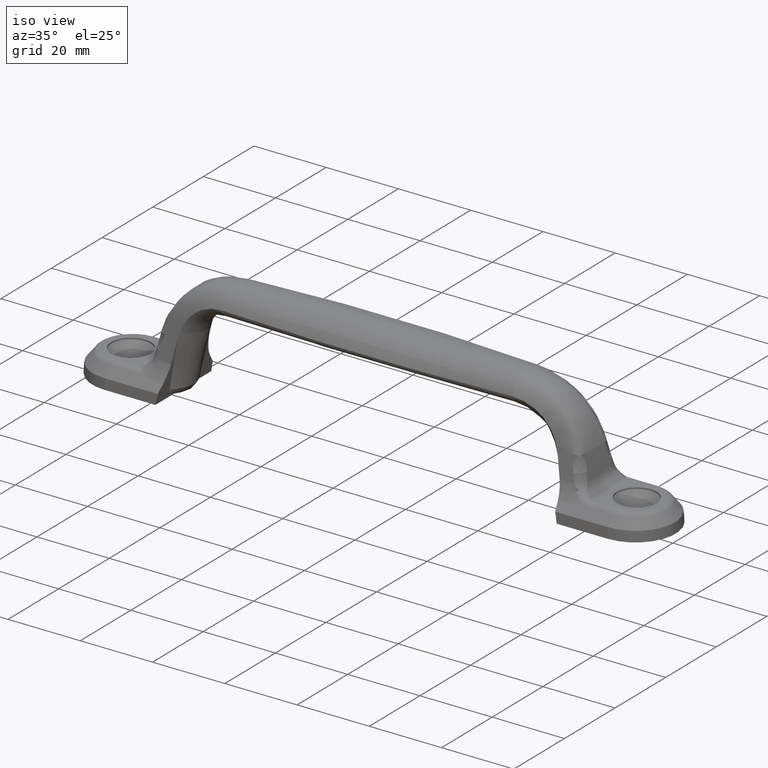
[diagram: clean part render]
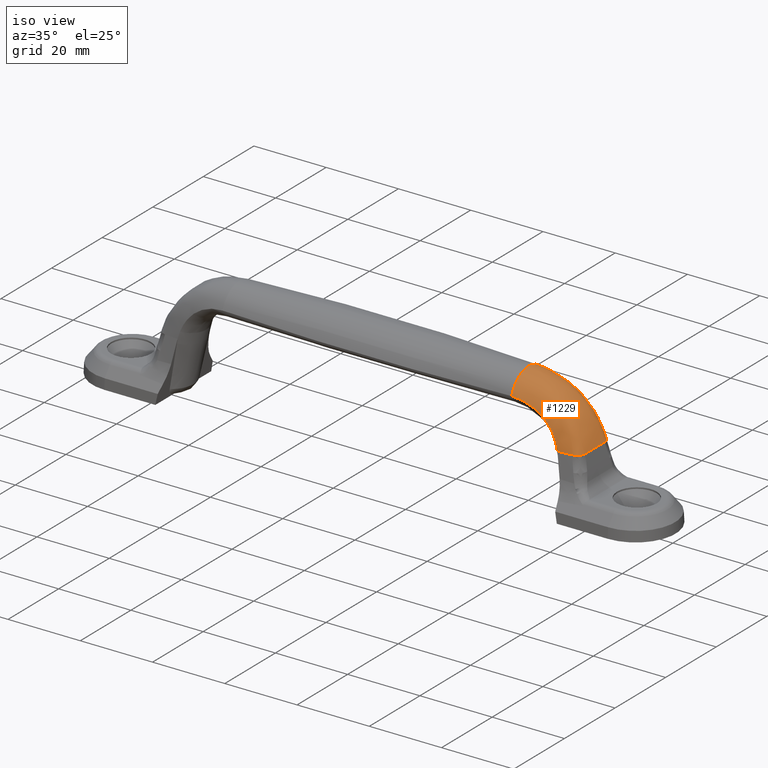
[diagram: same view with one face highlighted and labeled with its STEP entity id]
A machine part, iso view. The second image highlights one B-rep face of the part: STEP entity #1229.
In plain terms, the highlighted face is a freeform B-spline surface patch.
Its self-contained STEP definition (entity closure, byte-faithful):
#214=FACE_OUTER_BOUND('',#292,.T.);
#292=EDGE_LOOP('',(#974,#975,#976,#977,#978,#979,#980,#981,#982,#983));
#351=B_SPLINE_CURVE_WITH_KNOTS('',3,(#2595,#2596,#2597,#2598,#2599,#2600,
#2601,#2602,#2603,#2604,#2605,#2606,#2607,#2608,#2609,#2610,#2611,#2612,
#2613,#2614,#2615,#2616,#2617,#2618,#2619,#2620,#2621,#2622,#2623,#2624,
#2625,#2626,#2627,#2628,#2629,#2630,#2631,#2632,#2633,#2634,#2635,#2636,
#2637,#2638,#2639,#2640,#2641,#2642,#2643,#2644,#2645,#2646,#2647,#2648,
#2649,#2650,#2651,#2652,#2653,#2654,#2655,#2656,#2657,#2658,#2659,#2660,
#2661,#2662,#2663,#2664,#2665,#2666,#2667,#2668,#2669,#2670,#2671,#2672,
#2673,#2674,#2675,#2676,#2677,#2678,#2679,#2680,#2681,#2682,#2683,#2684,
#2685),.UNSPECIFIED.,.F.,.F.,(4,3,3,3,3,3,3,3,3,3,3,3,3,3,3,3,3,3,3,3,3,
3,3,3,3,3,3,3,3,3,4),(-1.45244274154689,-1.27233968254572,-1.26188003441184,
-1.24863686578575,-1.18135394634332,-1.16579611570929,-1.15720602615803,
-1.09036821014091,-1.07221479506251,-1.06942040785981,-0.99254048561245,
-0.972499810366414,-0.91441658445537,-0.875554938940432,-0.756628009416818,
-0.726425265331289,-0.695264892774965,-0.576607233459581,-0.5372171583115,
-0.479769798405919,-0.458965352495309,-0.38294672648406,-0.379217261253053,
-0.362482320521668,-0.294311222000496,-0.286674913206958,-0.271496584319263,
-0.203202702541767,-0.190717509408556,-0.180510848116858,-0.000407574921135646),
 .UNSPECIFIED.);
#354=B_SPLINE_CURVE_WITH_KNOTS('',3,(#2784,#2785,#2786,#2787,#2788,#2789,
#2790),.UNSPECIFIED.,.F.,.F.,(4,3,4),(0.000155878891895283,0.816106507072916,
0.998410947651196),.UNSPECIFIED.);
#356=B_SPLINE_CURVE_WITH_KNOTS('',3,(#2842,#2843,#2844,#2845),
 .UNSPECIFIED.,.F.,.F.,(4,4),(0.0058206311326726,0.999233072081843),
 .UNSPECIFIED.);
#364=B_SPLINE_CURVE_WITH_KNOTS('',3,(#3199,#3200,#3201,#3202,#3203,#3204,
#3205,#3206,#3207,#3208,#3209,#3210,#3211,#3212,#3213,#3214,#3215,#3216),
 .UNSPECIFIED.,.F.,.F.,(4,2,2,2,2,2,2,2,4),(-3.51121698764888,-2.53379644910282,
-1.55025259839207,-1.42293970987048,-0.8631395817506,-0.571547013435443,
-0.498876996679611,-0.292497005789448,-0.0231982827862569),
 .UNSPECIFIED.);
#365=B_SPLINE_CURVE_WITH_KNOTS('',3,(#3217,#3218,#3219,#3220,#3221,#3222,
#3223,#3224,#3225,#3226,#3227,#3228,#3229,#3230,#3231,#3232),
 .UNSPECIFIED.,.F.,.F.,(4,2,2,2,2,2,2,4),(-1.56173898321081,-1.54168394876702,
-1.04008026114952,-0.798445306632561,-0.699808089068794,-0.677956486823365,
-0.338983223211976,-0.00275634945347878),.UNSPECIFIED.);
#376=B_SPLINE_CURVE_WITH_KNOTS('',3,(#3414,#3415,#3416,#3417,#3418,#3419,
#3420),.UNSPECIFIED.,.F.,.F.,(4,3,4),(4.27001461146954E-5,0.268204571787669,
0.991958816736589),.UNSPECIFIED.);
#378=B_SPLINE_CURVE_WITH_KNOTS('',3,(#3455,#3456,#3457,#3458,#3459,#3460,
#3461),.UNSPECIFIED.,.F.,.F.,(4,3,4),(0.00630122673471058,0.731811963247548,
0.999986680318353),.UNSPECIFIED.);
#384=B_SPLINE_CURVE_WITH_KNOTS('',3,(#3501,#3502,#3503,#3504,#3505,#3506,
#3507,#3508,#3509,#3510,#3511,#3512,#3513),.UNSPECIFIED.,.F.,.F.,(4,3,3,
3,4),(0.,0.103987121907698,0.493367860753381,0.882748599599065,1.),
 .UNSPECIFIED.);
#387=B_SPLINE_CURVE_WITH_KNOTS('',3,(#3544,#3545,#3546,#3547,#3548,#3549,
#3550,#3551,#3552,#3553,#3554,#3555,#3556),.UNSPECIFIED.,.F.,.F.,(4,3,3,
3,4),(5.74718952715647E-6,0.129473078932469,0.49999044705951,0.870507815186551,
0.999991339300556),.UNSPECIFIED.);
#390=B_SPLINE_CURVE_WITH_KNOTS('',3,(#3617,#3618,#3619,#3620,#3621,#3622,
#3623,#3624,#3625,#3626,#3627,#3628,#3629,#3630,#3631,#3632),
 .UNSPECIFIED.,.F.,.F.,(4,3,3,3,3,4),(2.57490628136049E-6,0.117221037114539,
0.501697785839383,0.506625757666782,0.896030478219026,1.),.UNSPECIFIED.);
#462=VERTEX_POINT('',#1500);
#473=VERTEX_POINT('',#2238);
#478=VERTEX_POINT('',#2776);
#479=VERTEX_POINT('',#2783);
#480=VERTEX_POINT('',#2791);
#481=VERTEX_POINT('',#2841);
#501=VERTEX_POINT('',#3404);
#504=VERTEX_POINT('',#3449);
#509=VERTEX_POINT('',#3496);
#512=VERTEX_POINT('',#3539);
#607=EDGE_CURVE('',#462,#473,#351,.T.);
#612=EDGE_CURVE('',#479,#478,#354,.T.);
#614=EDGE_CURVE('',#481,#480,#356,.T.);
#625=EDGE_CURVE('',#480,#462,#364,.T.);
#626=EDGE_CURVE('',#473,#479,#365,.T.);
#645=EDGE_CURVE('',#501,#481,#376,.T.);
#649=EDGE_CURVE('',#478,#504,#378,.T.);
#655=EDGE_CURVE('',#504,#509,#384,.T.);
#658=EDGE_CURVE('',#509,#512,#387,.T.);
#662=EDGE_CURVE('',#512,#501,#390,.T.);
#974=ORIENTED_EDGE('',*,*,#607,.T.);
#975=ORIENTED_EDGE('',*,*,#626,.T.);
#976=ORIENTED_EDGE('',*,*,#612,.T.);
#977=ORIENTED_EDGE('',*,*,#649,.T.);
#978=ORIENTED_EDGE('',*,*,#655,.T.);
#979=ORIENTED_EDGE('',*,*,#658,.T.);
#980=ORIENTED_EDGE('',*,*,#662,.T.);
#981=ORIENTED_EDGE('',*,*,#645,.T.);
#982=ORIENTED_EDGE('',*,*,#614,.T.);
#983=ORIENTED_EDGE('',*,*,#625,.T.);
#1179=B_SPLINE_SURFACE_WITH_KNOTS('',3,3,((#4013,#4014,#4015,#4016,#4017,
#4018,#4019,#4020,#4021,#4022,#4023,#4024,#4025,#4026,#4027,#4028,#4029,
#4030,#4031,#4032,#4033,#4034,#4035,#4036,#4037,#4038,#4039,#4040,#4041,
#4042,#4043,#4044,#4045,#4046,#4047,#4048,#4049),(#4050,#4051,#4052,#4053,
#4054,#4055,#4056,#4057,#4058,#4059,#4060,#4061,#4062,#4063,#4064,#4065,
#4066,#4067,#4068,#4069,#4070,#4071,#4072,#4073,#4074,#4075,#4076,#4077,
#4078,#4079,#4080,#4081,#4082,#4083,#4084,#4085,#4086),(#4087,#4088,#4089,
#4090,#4091,#4092,#4093,#4094,#4095,#4096,#4097,#4098,#4099,#4100,#4101,
#4102,#4103,#4104,#4105,#4106,#4107,#4108,#4109,#4110,#4111,#4112,#4113,
#4114,#4115,#4116,#4117,#4118,#4119,#4120,#4121,#4122,#4123),(#4124,#4125,
#4126,#4127,#4128,#4129,#4130,#4131,#4132,#4133,#4134,#4135,#4136,#4137,
#4138,#4139,#4140,#4141,#4142,#4143,#4144,#4145,#4146,#4147,#4148,#4149,
#4150,#4151,#4152,#4153,#4154,#4155,#4156,#4157,#4158,#4159,#4160),(#4161,
#4162,#4163,#4164,#4165,#4166,#4167,#4168,#4169,#4170,#4171,#4172,#4173,
#4174,#4175,#4176,#4177,#4178,#4179,#4180,#4181,#4182,#4183,#4184,#4185,
#4186,#4187,#4188,#4189,#4190,#4191,#4192,#4193,#4194,#4195,#4196,#4197),
(#4198,#4199,#4200,#4201,#4202,#4203,#4204,#4205,#4206,#4207,#4208,#4209,
#4210,#4211,#4212,#4213,#4214,#4215,#4216,#4217,#4218,#4219,#4220,#4221,
#4222,#4223,#4224,#4225,#4226,#4227,#4228,#4229,#4230,#4231,#4232,#4233,
#4234),(#4235,#4236,#4237,#4238,#4239,#4240,#4241,#4242,#4243,#4244,#4245,
#4246,#4247,#4248,#4249,#4250,#4251,#4252,#4253,#4254,#4255,#4256,#4257,
#4258,#4259,#4260,#4261,#4262,#4263,#4264,#4265,#4266,#4267,#4268,#4269,
#4270,#4271),(#4272,#4273,#4274,#4275,#4276,#4277,#4278,#4279,#4280,#4281,
#4282,#4283,#4284,#4285,#4286,#4287,#4288,#4289,#4290,#4291,#4292,#4293,
#4294,#4295,#4296,#4297,#4298,#4299,#4300,#4301,#4302,#4303,#4304,#4305,
#4306,#4307,#4308),(#4309,#4310,#4311,#4312,#4313,#4314,#4315,#4316,#4317,
#4318,#4319,#4320,#4321,#4322,#4323,#4324,#4325,#4326,#4327,#4328,#4329,
#4330,#4331,#4332,#4333,#4334,#4335,#4336,#4337,#4338,#4339,#4340,#4341,
#4342,#4343,#4344,#4345),(#4346,#4347,#4348,#4349,#4350,#4351,#4352,#4353,
#4354,#4355,#4356,#4357,#4358,#4359,#4360,#4361,#4362,#4363,#4364,#4365,
#4366,#4367,#4368,#4369,#4370,#4371,#4372,#4373,#4374,#4375,#4376,#4377,
#4378,#4379,#4380,#4381,#4382),(#4383,#4384,#4385,#4386,#4387,#4388,#4389,
#4390,#4391,#4392,#4393,#4394,#4395,#4396,#4397,#4398,#4399,#4400,#4401,
#4402,#4403,#4404,#4405,#4406,#4407,#4408,#4409,#4410,#4411,#4412,#4413,
#4414,#4415,#4416,#4417,#4418,#4419),(#4420,#4421,#4422,#4423,#4424,#4425,
#4426,#4427,#4428,#4429,#4430,#4431,#4432,#4433,#4434,#4435,#4436,#4437,
#4438,#4439,#4440,#4441,#4442,#4443,#4444,#4445,#4446,#4447,#4448,#4449,
#4450,#4451,#4452,#4453,#4454,#4455,#4456),(#4457,#4458,#4459,#4460,#4461,
#4462,#4463,#4464,#4465,#4466,#4467,#4468,#4469,#4470,#4471,#4472,#4473,
#4474,#4475,#4476,#4477,#4478,#4479,#4480,#4481,#4482,#4483,#4484,#4485,
#4486,#4487,#4488,#4489,#4490,#4491,#4492,#4493)),.UNSPECIFIED.,.F.,.F.,
 .F.,(4,3,3,3,4),(4,3,3,3,3,3,3,3,3,3,3,3,4),(-3.09396192079746E-7,0.25,
0.5,0.75,1.00009921600731),(0.,0.125,0.1875,0.25,0.3125,0.375,0.5,0.625,
0.6875,0.75,0.8125,0.875,1.),.UNSPECIFIED.);
#1229=ADVANCED_FACE('',(#214),#1179,.T.);
#1500=CARTESIAN_POINT('',(40.000000012315,66.7435429464267,26.0890724852704));
#2238=CARTESIAN_POINT('',(40.0000000001041,53.3919639267432,26.0888706103815));
#2595=CARTESIAN_POINT('Ctrl Pts',(40.,66.7435429479448,26.0890724857202));
#2596=CARTESIAN_POINT('Ctrl Pts',(40.,66.5456162994502,26.7571195508299));
#2597=CARTESIAN_POINT('Ctrl Pts',(40.0000000000055,66.2466259363051,27.3952777706087));
#2598=CARTESIAN_POINT('Ctrl Pts',(40.0000000000064,65.8602251725342,27.974926886927));
#2599=CARTESIAN_POINT('Ctrl Pts',(40.0000000000065,65.8377845985089,28.0085905339046));
#2600=CARTESIAN_POINT('Ctrl Pts',(40.0000000000065,65.8150487414152,28.0420572762008));
#2601=CARTESIAN_POINT('Ctrl Pts',(40.0000000000065,65.7920213779996,28.0753200027706));
#2602=CARTESIAN_POINT('Ctrl Pts',(40.0000000000065,65.7628659749857,28.117434602735));
#2603=CARTESIAN_POINT('Ctrl Pts',(40.0000000000065,65.733243942831,28.1592232941396));
#2604=CARTESIAN_POINT('Ctrl Pts',(40.0000000000066,65.7031637506445,28.2006767307134));
#2605=CARTESIAN_POINT('Ctrl Pts',(40.0000000000069,65.5503390600557,28.4112840492754));
#2606=CARTESIAN_POINT('Ctrl Pts',(40.0000000000083,65.3856747424858,28.6132267834702));
#2607=CARTESIAN_POINT('Ctrl Pts',(40.0000000000087,65.2103160519707,28.8053440326915));
#2608=CARTESIAN_POINT('Ctrl Pts',(40.0000000000088,65.1697678589101,28.8497673075736));
#2609=CARTESIAN_POINT('Ctrl Pts',(40.0000000000088,65.1286485439547,28.8936657242846));
#2610=CARTESIAN_POINT('Ctrl Pts',(40.0000000000089,65.0869728875365,28.9370252935861));
#2611=CARTESIAN_POINT('Ctrl Pts',(40.0000000000089,65.0639621202155,28.9609658153701));
#2612=CARTESIAN_POINT('Ctrl Pts',(40.0000000000089,65.0407813561301,28.9847418543393));
#2613=CARTESIAN_POINT('Ctrl Pts',(40.000000000009,65.0174332301336,29.0083505927952));
#2614=CARTESIAN_POINT('Ctrl Pts',(40.0000000000096,64.8357660029892,29.1920455947966));
#2615=CARTESIAN_POINT('Ctrl Pts',(40.0000000000129,64.643959435347,29.3656205501717));
#2616=CARTESIAN_POINT('Ctrl Pts',(40.0000000000137,64.4431287787644,29.5279386448336));
#2617=CARTESIAN_POINT('Ctrl Pts',(40.0000000000139,64.388582378438,29.5720248810801));
#2618=CARTESIAN_POINT('Ctrl Pts',(40.0000000000141,64.3333623737363,29.6152863515117));
#2619=CARTESIAN_POINT('Ctrl Pts',(40.0000000000141,64.2775290425014,29.657672136474));
#2620=CARTESIAN_POINT('Ctrl Pts',(40.0000000000142,64.2689345193435,29.6641966551149));
#2621=CARTESIAN_POINT('Ctrl Pts',(40.0000000000142,64.2603253758254,29.6707006135387));
#2622=CARTESIAN_POINT('Ctrl Pts',(40.0000000000141,64.2517016763803,29.677183629416));
#2623=CARTESIAN_POINT('Ctrl Pts',(40.0000000000136,64.0144441688385,29.8555460825848));
#2624=CARTESIAN_POINT('Ctrl Pts',(40.0000000000113,63.7661804046834,30.0182280151452));
#2625=CARTESIAN_POINT('Ctrl Pts',(40.0000000000108,63.5086588093922,30.1645552723626));
#2626=CARTESIAN_POINT('Ctrl Pts',(40.0000000000107,63.4415293624676,30.2026991330197));
#2627=CARTESIAN_POINT('Ctrl Pts',(40.0000000000106,63.373768395033,30.2397296670883));
#2628=CARTESIAN_POINT('Ctrl Pts',(40.0000000000105,63.305406734539,30.2756290480425));
#2629=CARTESIAN_POINT('Ctrl Pts',(40.0000000000103,63.1072763960459,30.379675035936));
#2630=CARTESIAN_POINT('Ctrl Pts',(40.0000000000095,62.9040887728557,30.4742382155063));
#2631=CARTESIAN_POINT('Ctrl Pts',(40.0000000000092,62.6965564401967,30.5589024510127));
#2632=CARTESIAN_POINT('Ctrl Pts',(40.0000000000091,62.5577031341314,30.6155486075655));
#2633=CARTESIAN_POINT('Ctrl Pts',(40.0000000000089,62.4167080039818,30.6678259036278));
#2634=CARTESIAN_POINT('Ctrl Pts',(40.0000000000087,62.2743848960654,30.7153618745583));
#2635=CARTESIAN_POINT('Ctrl Pts',(40.0000000000081,61.8388384851897,30.8608345376371));
#2636=CARTESIAN_POINT('Ctrl Pts',(40.0000000000062,61.3785916573075,30.9682906469442));
#2637=CARTESIAN_POINT('Ctrl Pts',(40.0000000000058,60.8750869615535,31.0271000978467));
#2638=CARTESIAN_POINT('Ctrl Pts',(40.0000000000056,60.7472166504924,31.042035376194));
#2639=CARTESIAN_POINT('Ctrl Pts',(40.0000000000056,60.616556382477,31.0538331424631));
#2640=CARTESIAN_POINT('Ctrl Pts',(40.0000000000056,60.4841462873822,31.0617522825016));
#2641=CARTESIAN_POINT('Ctrl Pts',(40.0000000000055,60.3475379089618,31.0699225121082));
#2642=CARTESIAN_POINT('Ctrl Pts',(40.0000000000055,60.2089628957668,31.0744393749045));
#2643=CARTESIAN_POINT('Ctrl Pts',(40.0000000000055,60.0677024010521,31.0743883025412));
#2644=CARTESIAN_POINT('Ctrl Pts',(40.0000000000054,59.5297871490352,31.0741938206852));
#2645=CARTESIAN_POINT('Ctrl Pts',(40.0000000000052,58.9529307769382,31.0077614927413));
#2646=CARTESIAN_POINT('Ctrl Pts',(40.0000000000052,58.4027135820866,30.8722099526798));
#2647=CARTESIAN_POINT('Ctrl Pts',(40.0000000000052,58.2200612629863,30.8272117167441));
#2648=CARTESIAN_POINT('Ctrl Pts',(40.0000000000052,58.03936986612,30.7749930502631));
#2649=CARTESIAN_POINT('Ctrl Pts',(40.0000000000053,57.8610634763408,30.7154191970866));
#2650=CARTESIAN_POINT('Ctrl Pts',(40.0000000000053,57.6010174797641,30.6285353673014));
#2651=CARTESIAN_POINT('Ctrl Pts',(40.0000000000055,57.3460521437885,30.5261574464983));
#2652=CARTESIAN_POINT('Ctrl Pts',(40.0000000000056,57.0974239637422,30.408862795047));
#2653=CARTESIAN_POINT('Ctrl Pts',(40.0000000000056,57.0073837681244,30.3663847728066));
#2654=CARTESIAN_POINT('Ctrl Pts',(40.0000000000056,56.9182105792286,30.3219662850766));
#2655=CARTESIAN_POINT('Ctrl Pts',(40.0000000000057,56.8298467934963,30.2755591568647));
#2656=CARTESIAN_POINT('Ctrl Pts',(40.0000000000058,56.5069690004811,30.1059893380407));
#2657=CARTESIAN_POINT('Ctrl Pts',(40.0000000000066,56.2026374885721,29.9134361934));
#2658=CARTESIAN_POINT('Ctrl Pts',(40.0000000000068,55.9247728929222,29.7076990120874));
#2659=CARTESIAN_POINT('Ctrl Pts',(40.0000000000068,55.9111408871524,29.697605569142));
#2660=CARTESIAN_POINT('Ctrl Pts',(40.0000000000068,55.8975528779916,29.6874695501255));
#2661=CARTESIAN_POINT('Ctrl Pts',(40.0000000000068,55.8840282949358,29.6773020530628));
#2662=CARTESIAN_POINT('Ctrl Pts',(40.0000000000068,55.8233404799715,29.6316782302917));
#2663=CARTESIAN_POINT('Ctrl Pts',(40.0000000000068,55.7638098606277,29.5853563857783));
#2664=CARTESIAN_POINT('Ctrl Pts',(40.0000000000067,55.7054314067084,29.5384012115817));
#2665=CARTESIAN_POINT('Ctrl Pts',(40.0000000000066,55.4676221788466,29.3471256129636));
#2666=CARTESIAN_POINT('Ctrl Pts',(40.0000000000062,55.248877929845,29.1453487366858));
#2667=CARTESIAN_POINT('Ctrl Pts',(40.0000000000062,55.0487092980481,28.9370997468335));
#2668=CARTESIAN_POINT('Ctrl Pts',(40.0000000000062,55.0262870470305,28.9137723599063));
#2669=CARTESIAN_POINT('Ctrl Pts',(40.0000000000062,55.0040983379772,28.8903638541428));
#2670=CARTESIAN_POINT('Ctrl Pts',(40.0000000000062,54.982141555193,28.8668791703864));
#2671=CARTESIAN_POINT('Ctrl Pts',(40.0000000000062,54.9384990992073,28.8201997780889));
#2672=CARTESIAN_POINT('Ctrl Pts',(40.0000000000062,54.8957732469947,28.7732196425984));
#2673=CARTESIAN_POINT('Ctrl Pts',(40.0000000000061,54.8539620096702,28.7259816853404));
#2674=CARTESIAN_POINT('Ctrl Pts',(40.000000000006,54.6658351269323,28.513437637029));
#2675=CARTESIAN_POINT('Ctrl Pts',(40.0000000000056,54.4964248354426,28.2960580309727));
#2676=CARTESIAN_POINT('Ctrl Pts',(40.0000000000055,54.3436550965397,28.075389358321));
#2677=CARTESIAN_POINT('Ctrl Pts',(40.0000000000054,54.3157263912814,28.0350476626259));
#2678=CARTESIAN_POINT('Ctrl Pts',(40.0000000000054,54.2883626614199,27.9946003672913));
#2679=CARTESIAN_POINT('Ctrl Pts',(40.0000000000054,54.2615516744325,27.9540620802786));
#2680=CARTESIAN_POINT('Ctrl Pts',(40.0000000000054,54.2396336584148,27.9209219790026));
#2681=CARTESIAN_POINT('Ctrl Pts',(40.0000000000055,54.2180858385191,27.8877215061967));
#2682=CARTESIAN_POINT('Ctrl Pts',(40.0000000000054,54.1969024926047,27.8544680068273));
#2683=CARTESIAN_POINT('Ctrl Pts',(40.0000000000046,53.8231083764506,27.2676880686595));
#2684=CARTESIAN_POINT('Ctrl Pts',(40.,53.5625519277926,26.6647118996734));
#2685=CARTESIAN_POINT('Ctrl Pts',(40.,53.3919639267303,26.0888706103853));
#2776=CARTESIAN_POINT('',(52.5457929701532,53.5695710763902,15.5692705312309));
#2783=CARTESIAN_POINT('',(51.9940394893891,53.6900829210143,17.5192628345079));
#2784=CARTESIAN_POINT('Ctrl Pts',(51.9940394893891,53.6900829210143,17.5192628345079));
#2785=CARTESIAN_POINT('Ctrl Pts',(52.1848891296334,53.6500222856692,17.0016298377873));
#2786=CARTESIAN_POINT('Ctrl Pts',(52.340114332108,53.6053867427637,16.4710632403773));
#2787=CARTESIAN_POINT('Ctrl Pts',(52.463093748111,53.5841565864317,15.9327122470581));
#2788=CARTESIAN_POINT('Ctrl Pts',(52.4905705253359,53.5794132212822,15.8124307333462));
#2789=CARTESIAN_POINT('Ctrl Pts',(52.5164644083397,53.5758767300563,15.6917898395542));
#2790=CARTESIAN_POINT('Ctrl Pts',(52.5408680544991,53.5739031755323,15.5708222881835));
#2791=CARTESIAN_POINT('',(52.3057049717548,66.523262128641,16.563726559691));
#2841=CARTESIAN_POINT('',(52.574989201448,66.5873547252542,15.591719560274));
#2842=CARTESIAN_POINT('Ctrl Pts',(52.5685998565212,66.5702981904983,15.5853715749837));
#2843=CARTESIAN_POINT('Ctrl Pts',(52.4881281191058,66.5675200883984,15.9125277797307));
#2844=CARTESIAN_POINT('Ctrl Pts',(52.3981446192521,66.5510023278798,16.2389704805321));
#2845=CARTESIAN_POINT('Ctrl Pts',(52.3057049717548,66.523262128641,16.563726559691));
#3199=CARTESIAN_POINT('Ctrl Pts',(52.3285325047964,66.5424761359891,16.5726179795258));
#3200=CARTESIAN_POINT('Ctrl Pts',(51.9692082040754,66.4319344136748,17.8363841557459));
#3201=CARTESIAN_POINT('Ctrl Pts',(51.4151690203611,66.3406128313933,19.046241162819));
#3202=CARTESIAN_POINT('Ctrl Pts',(49.971001496015,66.2262448148227,21.2661825852159));
#3203=CARTESIAN_POINT('Ctrl Pts',(49.0794105637329,66.2040600226406,22.2741537017278));
#3204=CARTESIAN_POINT('Ctrl Pts',(47.9210083144546,66.2383743581828,23.2290027307436));
#3205=CARTESIAN_POINT('Ctrl Pts',(47.7831278195493,66.2433433511681,23.3385457768125));
#3206=CARTESIAN_POINT('Ctrl Pts',(46.9920407310015,66.277168638913,23.9386539652634));
#3207=CARTESIAN_POINT('Ctrl Pts',(46.3028809503292,66.3243132528809,24.3656778552649));
#3208=CARTESIAN_POINT('Ctrl Pts',(45.2029394477704,66.4031014006734,24.9126905641189));
#3209=CARTESIAN_POINT('Ctrl Pts',(44.8172039597587,66.4313309598415,25.0816489585696));
#3210=CARTESIAN_POINT('Ctrl Pts',(44.3261138468254,66.4654649285516,25.2687892346078));
#3211=CARTESIAN_POINT('Ctrl Pts',(44.2339766270439,66.4717882364955,25.3026696637544));
#3212=CARTESIAN_POINT('Ctrl Pts',(43.8281344360229,66.499169054518,25.4462962115158));
#3213=CARTESIAN_POINT('Ctrl Pts',(43.3321542391371,66.53227582799,25.612600336752));
#3214=CARTESIAN_POINT('Ctrl Pts',(41.7889061632184,66.6328504749131,25.9616855097428));
#3215=CARTESIAN_POINT('Ctrl Pts',(40.8957258863461,66.6893671520033,26.0692342259001));
#3216=CARTESIAN_POINT('Ctrl Pts',(40.0000000123659,66.7435429471685,26.089072485542));
#3217=CARTESIAN_POINT('Ctrl Pts',(40.0000000002081,53.3919639267432,26.0888706103815));
#3218=CARTESIAN_POINT('Ctrl Pts',(40.0677853088576,53.3960402336506,26.0872902005239));
#3219=CARTESIAN_POINT('Ctrl Pts',(40.1355579268972,53.4001323805341,26.0852152117498));
#3220=CARTESIAN_POINT('Ctrl Pts',(41.897904702304,53.5069629198931,26.0183343370727));
#3221=CARTESIAN_POINT('Ctrl Pts',(43.5502570785343,53.613294598896,25.6446171568805));
#3222=CARTESIAN_POINT('Ctrl Pts',(45.8446308089941,53.7784917245678,24.618690238786));
#3223=CARTESIAN_POINT('Ctrl Pts',(46.5585870241568,53.8308662890163,24.2148097632796));
#3224=CARTESIAN_POINT('Ctrl Pts',(47.5030853432874,53.8807919017055,23.5547758637189));
#3225=CARTESIAN_POINT('Ctrl Pts',(47.7636209687028,53.8921898135834,23.3572176488428));
#3226=CARTESIAN_POINT('Ctrl Pts',(48.0844228260871,53.9019580423554,23.0941991336892));
#3227=CARTESIAN_POINT('Ctrl Pts',(48.1387509574376,53.9034602179624,23.0488620790401));
#3228=CARTESIAN_POINT('Ctrl Pts',(49.0558186021027,53.9265562272045,22.2702110424124));
#3229=CARTESIAN_POINT('Ctrl Pts',(49.8192928360236,53.9108761911202,21.422997699757));
#3230=CARTESIAN_POINT('Ctrl Pts',(51.1039445743627,53.8265113521147,19.5757461861335));
#3231=CARTESIAN_POINT('Ctrl Pts',(51.6272340066609,53.7584062526338,18.576659697282));
#3232=CARTESIAN_POINT('Ctrl Pts',(52.0156493211811,53.6736803922032,17.5287834780245));
#3404=CARTESIAN_POINT('',(56.3265049243397,66.1812863939882,15.5627503776299));
#3414=CARTESIAN_POINT('Ctrl Pts',(56.3262784534794,66.181840138253,15.563527599387));
#3415=CARTESIAN_POINT('Ctrl Pts',(55.9927373488018,66.2177921898363,15.562676791414));
#3416=CARTESIAN_POINT('Ctrl Pts',(55.6456683441786,66.2557566294422,15.5652601377525));
#3417=CARTESIAN_POINT('Ctrl Pts',(55.3055617486381,66.2945666759741,15.5654643473209));
#3418=CARTESIAN_POINT('Ctrl Pts',(54.3876326234022,66.3993128718152,15.5660154977927));
#3419=CARTESIAN_POINT('Ctrl Pts',(53.4692445091578,66.5126444548952,15.567332629369));
#3420=CARTESIAN_POINT('Ctrl Pts',(52.5525230785546,66.6384162443771,15.5684998247347));
#3449=CARTESIAN_POINT('',(56.3261006618599,53.9565457889618,15.5631211735097));
#3455=CARTESIAN_POINT('Ctrl Pts',(52.5455247964075,53.4990533416608,15.5681727835747));
#3456=CARTESIAN_POINT('Ctrl Pts',(53.464480376662,53.625191647068,15.5669848008445));
#3457=CARTESIAN_POINT('Ctrl Pts',(54.3851070886216,53.7388069249412,15.5655921507082));
#3458=CARTESIAN_POINT('Ctrl Pts',(55.3052760600461,53.843811177857,15.5650677788063));
#3459=CARTESIAN_POINT('Ctrl Pts',(55.6454034229507,53.8826245053514,15.5648739521966));
#3460=CARTESIAN_POINT('Ctrl Pts',(55.9925373900129,53.9205972717418,15.5623017626461));
#3461=CARTESIAN_POINT('Ctrl Pts',(56.3261006618599,53.9565457889618,15.5631211735097));
#3496=CARTESIAN_POINT('',(58.4461230041097,56.2860108967115,15.5555938271644));
#3501=CARTESIAN_POINT('Ctrl Pts',(56.3262019278206,53.9570283103183,15.5630701397735));
#3502=CARTESIAN_POINT('Ctrl Pts',(56.4475004980018,53.9701188051427,15.5633131606998));
#3503=CARTESIAN_POINT('Ctrl Pts',(56.5667049953744,53.9919959054399,15.5627224541012));
#3504=CARTESIAN_POINT('Ctrl Pts',(56.6816699409339,54.0216313284243,15.5614397727542));
#3505=CARTESIAN_POINT('Ctrl Pts',(57.1121572418811,54.1326014436267,15.5566367605982));
#3506=CARTESIAN_POINT('Ctrl Pts',(57.5159703488576,54.3674049218554,15.5550112300272));
#3507=CARTESIAN_POINT('Ctrl Pts',(57.8225520460413,54.6956003609681,15.5539495303765));
#3508=CARTESIAN_POINT('Ctrl Pts',(58.1291337432249,55.0237958000808,15.5528878307258));
#3509=CARTESIAN_POINT('Ctrl Pts',(58.3358241406957,55.4439186431382,15.5522034935914));
#3510=CARTESIAN_POINT('Ctrl Pts',(58.4112198308206,55.8806691537495,15.5552444359968));
#3511=CARTESIAN_POINT('Ctrl Pts',(58.433923188664,56.0121846702766,15.5561601329484));
#3512=CARTESIAN_POINT('Ctrl Pts',(58.4458970010309,56.1482774655864,15.5565743206423));
#3513=CARTESIAN_POINT('Ctrl Pts',(58.4461193051327,56.2858489735896,15.5556097506113));
#3539=CARTESIAN_POINT('',(58.4461201296985,63.8495497097433,15.5556063119572));
#3544=CARTESIAN_POINT('Ctrl Pts',(58.4461230041097,56.2860108967115,15.5555938271644));
#3545=CARTESIAN_POINT('Ctrl Pts',(58.4466566219008,56.605903871212,15.5532760973767));
#3546=CARTESIAN_POINT('Ctrl Pts',(58.4457591565543,56.9381908598582,15.5571741422967));
#3547=CARTESIAN_POINT('Ctrl Pts',(58.4457854766791,57.2644107478239,15.5570598268199));
#3548=CARTESIAN_POINT('Ctrl Pts',(58.4458608011893,58.1980063714652,15.5567326719384));
#3549=CARTESIAN_POINT('Ctrl Pts',(58.4458091011452,59.1328438354578,15.5569572191963));
#3550=CARTESIAN_POINT('Ctrl Pts',(58.4458089082283,60.0677358557411,15.5569580570889));
#3551=CARTESIAN_POINT('Ctrl Pts',(58.4458087153114,61.0026278760243,15.5569588949815));
#3552=CARTESIAN_POINT('Ctrl Pts',(58.4458600243791,61.9374583807187,15.5567360458281));
#3553=CARTESIAN_POINT('Ctrl Pts',(58.445785736137,62.8710555453925,15.5570586999235));
#3554=CARTESIAN_POINT('Ctrl Pts',(58.4457597748617,63.1973167719469,15.5571714568223));
#3555=CARTESIAN_POINT('Ctrl Pts',(58.4466552824247,63.5296233699588,15.5532819159935));
#3556=CARTESIAN_POINT('Ctrl Pts',(58.4461201296985,63.8495497097434,15.5556063119572));
#3617=CARTESIAN_POINT('Ctrl Pts',(58.4461195014217,63.8496229872675,15.5556067394376));
#3618=CARTESIAN_POINT('Ctrl Pts',(58.4458890019062,63.9874095008125,15.5566082261941));
#3619=CARTESIAN_POINT('Ctrl Pts',(58.4334792543021,64.1232844558409,15.5560727992104));
#3620=CARTESIAN_POINT('Ctrl Pts',(58.4104226634261,64.254650775766,15.5550579869539));
#3621=CARTESIAN_POINT('Ctrl Pts',(58.3347970074527,64.6855325210579,15.5517294010845));
#3622=CARTESIAN_POINT('Ctrl Pts',(58.1345243147558,65.1011423980859,15.552889112704));
#3623=CARTESIAN_POINT('Ctrl Pts',(57.834219482823,65.4274203961474,15.5539081480295));
#3624=CARTESIAN_POINT('Ctrl Pts',(57.8303703716445,65.4316024144038,15.5539212093587));
#3625=CARTESIAN_POINT('Ctrl Pts',(57.8265054659183,65.4357694988454,15.5539343574142));
#3626=CARTESIAN_POINT('Ctrl Pts',(57.8226249113433,65.4399215712275,15.55394761476));
#3627=CARTESIAN_POINT('Ctrl Pts',(57.5159863340969,65.7680152865113,15.5549952005031));
#3628=CARTESIAN_POINT('Ctrl Pts',(57.1115311654468,66.0010362397545,15.5563246769906));
#3629=CARTESIAN_POINT('Ctrl Pts',(56.6814257040214,66.113225109331,15.5613077025177));
#3630=CARTESIAN_POINT('Ctrl Pts',(56.5665892452431,66.14317909423,15.5626381506447));
#3631=CARTESIAN_POINT('Ctrl Pts',(56.4474510773985,66.1654222115008,15.563273938538));
#3632=CARTESIAN_POINT('Ctrl Pts',(56.3260858187684,66.1785581126283,15.563006015218));
#4013=CARTESIAN_POINT('Ctrl Pts',(39.7684611426365,53.3716507705844,26.0704511420766));
#4014=CARTESIAN_POINT('Ctrl Pts',(39.7686448492905,53.5818419331885,26.7878137633541));
#4015=CARTESIAN_POINT('Ctrl Pts',(39.7688165399577,53.9084456482709,27.4713116835461));
#4016=CARTESIAN_POINT('Ctrl Pts',(39.7689747379005,54.3344905782451,28.0854899699693));
#4017=CARTESIAN_POINT('Ctrl Pts',(39.7690538368718,54.5475130432322,28.3925791131809));
#4018=CARTESIAN_POINT('Ctrl Pts',(39.7691298919243,54.7854715051288,28.6824626879745));
#4019=CARTESIAN_POINT('Ctrl Pts',(39.7691963004288,55.0449643924798,28.9515839865908));
#4020=CARTESIAN_POINT('Ctrl Pts',(39.7692627089334,55.3044572798307,29.220705285207));
#4021=CARTESIAN_POINT('Ctrl Pts',(39.7693327402056,55.5854837495756,29.469062469238));
#4022=CARTESIAN_POINT('Ctrl Pts',(39.7693866021073,55.8846164670489,29.6931238390398));
#4023=CARTESIAN_POINT('Ctrl Pts',(39.769440464009,56.1837491845221,29.9171852088415));
#4024=CARTESIAN_POINT('Ctrl Pts',(39.7694974991855,56.5011068580084,30.1170384733257));
#4025=CARTESIAN_POINT('Ctrl Pts',(39.7695427924485,56.8323368930087,30.2903895134072));
#4026=CARTESIAN_POINT('Ctrl Pts',(39.7695880857115,57.1635669280089,30.4637405534886));
#4027=CARTESIAN_POINT('Ctrl Pts',(39.769625196828,57.5086678096999,30.6105883818791));
#4028=CARTESIAN_POINT('Ctrl Pts',(39.7696558609568,57.8632710121043,30.7286693533428));
#4029=CARTESIAN_POINT('Ctrl Pts',(39.7697171892148,58.572477416913,30.9648312962702));
#4030=CARTESIAN_POINT('Ctrl Pts',(39.7697458835008,59.3202563496212,31.0860766693528));
#4031=CARTESIAN_POINT('Ctrl Pts',(39.7697458132482,60.0677456835493,31.0860807075496));
#4032=CARTESIAN_POINT('Ctrl Pts',(39.7697457429958,60.8152350174774,31.0860847457466));
#4033=CARTESIAN_POINT('Ctrl Pts',(39.7697168623683,61.5630177729479,30.9648474509122));
#4034=CARTESIAN_POINT('Ctrl Pts',(39.7696556054966,62.2722304680738,30.7286912975352));
#4035=CARTESIAN_POINT('Ctrl Pts',(39.7696249770606,62.6268368156368,30.6106132208466));
#4036=CARTESIAN_POINT('Ctrl Pts',(39.7695867277992,62.9719414676844,30.4637677540031));
#4037=CARTESIAN_POINT('Ctrl Pts',(39.7695418647447,63.3031755981906,30.2904182798871));
#4038=CARTESIAN_POINT('Ctrl Pts',(39.7694970016903,63.6344097286968,30.1170688057711));
#4039=CARTESIAN_POINT('Ctrl Pts',(39.7694437641666,63.9517717582094,29.9172162680292));
#4040=CARTESIAN_POINT('Ctrl Pts',(39.7693876433971,64.2509090711004,29.6931550967265));
#4041=CARTESIAN_POINT('Ctrl Pts',(39.7693315226275,64.5500463839914,29.4690939254239));
#4042=CARTESIAN_POINT('Ctrl Pts',(39.7692645862522,64.8310773479097,29.2207359520068));
#4043=CARTESIAN_POINT('Ctrl Pts',(39.7691956870671,65.0905747274163,28.9516133190519));
#4044=CARTESIAN_POINT('Ctrl Pts',(39.7691267878819,65.350072106923,28.6824906860971));
#4045=CARTESIAN_POINT('Ctrl Pts',(39.7690524496251,65.5880347294604,28.3926048679236));
#4046=CARTESIAN_POINT('Ctrl Pts',(39.7689737242163,65.8010609444325,28.0855129082302));
#4047=CARTESIAN_POINT('Ctrl Pts',(39.7688162733988,66.2271133743769,27.4713289888433));
#4048=CARTESIAN_POINT('Ctrl Pts',(39.7686439186821,66.5537228308831,26.7878228612241));
#4049=CARTESIAN_POINT('Ctrl Pts',(39.7684607113078,66.7639166353475,26.0704511194057));
#4050=CARTESIAN_POINT('Ctrl Pts',(41.2618850358962,53.4618322524764,26.0644553753919));
#4051=CARTESIAN_POINT('Ctrl Pts',(41.3724568367748,53.6751302728265,26.7710836802918));
#4052=CARTESIAN_POINT('Ctrl Pts',(41.4790979240008,53.998737423127,27.4310656698458));
#4053=CARTESIAN_POINT('Ctrl Pts',(41.5819268976354,54.4057480407757,28.016013064768));
#4054=CARTESIAN_POINT('Ctrl Pts',(41.6333413844527,54.6092533495999,28.3084867622292));
#4055=CARTESIAN_POINT('Ctrl Pts',(41.6846110225962,54.8321150524274,28.5808364391538));
#4056=CARTESIAN_POINT('Ctrl Pts',(41.7330296847167,55.0762892403298,28.8369256941195));
#4057=CARTESIAN_POINT('Ctrl Pts',(41.7814483468372,55.3204634282322,29.0930149490852));
#4058=CARTESIAN_POINT('Ctrl Pts',(41.8261070678464,55.5880819116245,29.3348807293976));
#4059=CARTESIAN_POINT('Ctrl Pts',(41.8614932047173,55.8785137107157,29.5573870478661));
#4060=CARTESIAN_POINT('Ctrl Pts',(41.8968793415883,56.1689455098068,29.7798933663347));
#4061=CARTESIAN_POINT('Ctrl Pts',(41.923017333167,56.4823961383422,29.9831819899816));
#4062=CARTESIAN_POINT('Ctrl Pts',(41.9359021793828,56.8123789596763,30.1609158093316));
#4063=CARTESIAN_POINT('Ctrl Pts',(41.9487870255987,57.1423617810103,30.3386496286816));
#4064=CARTESIAN_POINT('Ctrl Pts',(41.9515049844283,57.4885858916279,30.4906845254439));
#4065=CARTESIAN_POINT('Ctrl Pts',(41.9561430871346,57.8447785191756,30.6128245884999));
#4066=CARTESIAN_POINT('Ctrl Pts',(41.9654192925472,58.5571637742708,30.8571047146121));
#4067=CARTESIAN_POINT('Ctrl Pts',(41.9700954701575,59.3126376297766,30.9832466606817));
#4068=CARTESIAN_POINT('Ctrl Pts',(41.9700950981811,60.0677450878887,30.9832494018043));
#4069=CARTESIAN_POINT('Ctrl Pts',(41.9700947262047,60.822852546001,30.9832521429267));
#4070=CARTESIAN_POINT('Ctrl Pts',(41.9654177607199,61.5783267553555,30.8571157201599));
#4071=CARTESIAN_POINT('Ctrl Pts',(41.9561421740353,62.2907217007957,30.6128419330082));
#4072=CARTESIAN_POINT('Ctrl Pts',(41.9515043806929,62.6469191735156,30.4907050394324));
#4073=CARTESIAN_POINT('Ctrl Pts',(41.9487830574058,62.9931114526882,30.3386638618133));
#4074=CARTESIAN_POINT('Ctrl Pts',(41.9358971239782,63.3231191757899,30.1609314149146));
#4075=CARTESIAN_POINT('Ctrl Pts',(41.9230111905505,63.6531268988915,29.983198968016));
#4076=CARTESIAN_POINT('Ctrl Pts',(41.8968805885488,63.9666573452664,29.7799482240104));
#4077=CARTESIAN_POINT('Ctrl Pts',(41.8614960086351,64.2570392395233,29.5574244957968));
#4078=CARTESIAN_POINT('Ctrl Pts',(41.8261114287215,64.5474211337803,29.3349007675829));
#4079=CARTESIAN_POINT('Ctrl Pts',(41.7814340641219,64.815022354613,29.0931454310361));
#4080=CARTESIAN_POINT('Ctrl Pts',(41.7330178419914,65.0592141119969,28.8369768849298));
#4081=CARTESIAN_POINT('Ctrl Pts',(41.6846016198609,65.3034058693807,28.5808083388236));
#4082=CARTESIAN_POINT('Ctrl Pts',(41.6333317987431,65.5262598911055,28.3085191882094));
#4083=CARTESIAN_POINT('Ctrl Pts',(41.5819198727681,65.7297831593433,28.0160351529837));
#4084=CARTESIAN_POINT('Ctrl Pts',(41.4790960208181,66.1368296958188,27.4310670825328));
#4085=CARTESIAN_POINT('Ctrl Pts',(41.3724525707595,66.460419718248,26.7710952511091));
#4086=CARTESIAN_POINT('Ctrl Pts',(41.2618831267842,66.6737295997201,26.06445270652));
#4087=CARTESIAN_POINT('Ctrl Pts',(42.7474672856263,53.5580161612093,25.8121023053789));
#4088=CARTESIAN_POINT('Ctrl Pts',(42.9649460387465,53.773851498121,26.5059109492521));
#4089=CARTESIAN_POINT('Ctrl Pts',(43.1761815140715,54.0888263317854,27.1450864560483));
#4090=CARTESIAN_POINT('Ctrl Pts',(43.38009637296,54.4722914253042,27.7063126469894));
#4091=CARTESIAN_POINT('Ctrl Pts',(43.4820538024043,54.6640239720637,27.98692574246));
#4092=CARTESIAN_POINT('Ctrl Pts',(43.584062104487,54.8706782366127,28.2464720219751));
#4093=CARTESIAN_POINT('Ctrl Pts',(43.678335842212,55.0949651399484,28.4910941954068));
#4094=CARTESIAN_POINT('Ctrl Pts',(43.772609579937,55.319252043284,28.7357163688386));
#4095=CARTESIAN_POINT('Ctrl Pts',(43.8610547733086,55.5712346495335,28.9702161976062));
#4096=CARTESIAN_POINT('Ctrl Pts',(43.9335645465504,55.8529703536609,29.1887279083155));
#4097=CARTESIAN_POINT('Ctrl Pts',(44.0060743197922,56.1347060577882,29.4072396190248));
#4098=CARTESIAN_POINT('Ctrl Pts',(44.0627232205406,56.4465183770061,29.6099813035756));
#4099=CARTESIAN_POINT('Ctrl Pts',(44.0907868609616,56.7789466854379,29.7873317146884));
#4100=CARTESIAN_POINT('Ctrl Pts',(44.1188505013825,57.1113749938697,29.9646821258012));
#4101=CARTESIAN_POINT('Ctrl Pts',(44.1219567126264,57.4629527926093,30.1164901222573));
#4102=CARTESIAN_POINT('Ctrl Pts',(44.127435932761,57.8224587496381,30.2380565670808));
#4103=CARTESIAN_POINT('Ctrl Pts',(44.1383943730303,58.5414706636955,30.4811894567279));
#4104=CARTESIAN_POINT('Ctrl Pts',(44.1449784392141,59.3048181658164,30.6073317131782));
#4105=CARTESIAN_POINT('Ctrl Pts',(44.1449775793609,60.0677453546805,30.6073400018378));
#4106=CARTESIAN_POINT('Ctrl Pts',(44.1449767195076,60.8306725435446,30.6073482904974));
#4107=CARTESIAN_POINT('Ctrl Pts',(44.1383908601124,61.5940149688448,30.4812227710853));
#4108=CARTESIAN_POINT('Ctrl Pts',(44.1274224960705,62.3130446490467,30.2381068984624));
#4109=CARTESIAN_POINT('Ctrl Pts',(44.1219383140495,62.6725594891476,30.116548962151));
#4110=CARTESIAN_POINT('Ctrl Pts',(44.1188800924932,63.0240473009513,29.9647464917627));
#4111=CARTESIAN_POINT('Ctrl Pts',(44.0907885984082,63.3565293128101,29.7873982610906));
#4112=CARTESIAN_POINT('Ctrl Pts',(44.0626971043232,63.689011324669,29.6100500304186));
#4113=CARTESIAN_POINT('Ctrl Pts',(44.0059011543434,64.0010552493357,29.4073414109595));
#4114=CARTESIAN_POINT('Ctrl Pts',(43.9334669134246,64.2826350789001,29.1888290089289));
#4115=CARTESIAN_POINT('Ctrl Pts',(43.8610326725058,64.5642149084645,28.9703166068982));
#4116=CARTESIAN_POINT('Ctrl Pts',(43.7725188346474,64.8158502779808,28.7365132074465));
#4117=CARTESIAN_POINT('Ctrl Pts',(43.6784131383902,65.0403260039551,28.4913022394922));
#4118=CARTESIAN_POINT('Ctrl Pts',(43.5843074421328,65.2648017299294,28.2460912715379));
#4119=CARTESIAN_POINT('Ctrl Pts',(43.4823159507748,65.4712308118221,27.9870749012958));
#4120=CARTESIAN_POINT('Ctrl Pts',(43.3802098014797,65.6631179402492,27.7064432384248));
#4121=CARTESIAN_POINT('Ctrl Pts',(43.1759975028894,66.0468921971032,27.1451799126826));
#4122=CARTESIAN_POINT('Ctrl Pts',(42.9649959553359,66.3616251856052,26.5060826309984));
#4123=CARTESIAN_POINT('Ctrl Pts',(42.7474500185976,66.5775461830068,25.8122374649383));
#4124=CARTESIAN_POINT('Ctrl Pts',(44.1503194833818,53.6526924432613,25.3104567647268));
#4125=CARTESIAN_POINT('Ctrl Pts',(44.4718605893699,53.8681174490403,25.9769155990836));
#4126=CARTESIAN_POINT('Ctrl Pts',(44.7846640289402,54.169234636918,26.5857344010736));
#4127=CARTESIAN_POINT('Ctrl Pts',(45.0867977351872,54.5257428764752,27.1172688868394));
#4128=CARTESIAN_POINT('Ctrl Pts',(45.2378645883108,54.7039969962538,27.3830361297223));
#4129=CARTESIAN_POINT('Ctrl Pts',(45.3898291556636,54.893083426967,27.6286016727797));
#4130=CARTESIAN_POINT('Ctrl Pts',(45.5273851434241,55.0963196703569,27.8585027045779));
#4131=CARTESIAN_POINT('Ctrl Pts',(45.6649411311846,55.2995559137469,28.0884037363761));
#4132=CARTESIAN_POINT('Ctrl Pts',(45.7954526113895,55.5367418008451,28.3111005855792));
#4133=CARTESIAN_POINT('Ctrl Pts',(45.9043806076895,55.8114418415595,28.5204899123315));
#4134=CARTESIAN_POINT('Ctrl Pts',(46.0133086039895,56.086141882274,28.7298792390838));
#4135=CARTESIAN_POINT('Ctrl Pts',(46.1007572951026,56.3987409229306,28.9261750964749));
#4136=CARTESIAN_POINT('Ctrl Pts',(46.1440308117469,56.7357110473224,29.0974812367688));
#4137=CARTESIAN_POINT('Ctrl Pts',(46.1873043283913,57.0726811717142,29.2687873770626));
#4138=CARTESIAN_POINT('Ctrl Pts',(46.1901888540179,57.431368775055,29.4149554135178));
#4139=CARTESIAN_POINT('Ctrl Pts',(46.1955979170156,57.7956835207524,29.5316757903565));
#4140=CARTESIAN_POINT('Ctrl Pts',(46.2064160430109,58.5243130121473,29.7651165440341));
#4141=CARTESIAN_POINT('Ctrl Pts',(46.214229774604,59.2962737075847,29.8866908205456));
#4142=CARTESIAN_POINT('Ctrl Pts',(46.21423077003,60.0677441888064,29.8866923816305));
#4143=CARTESIAN_POINT('Ctrl Pts',(46.2142317654561,60.839214670028,29.8866939427155));
#4144=CARTESIAN_POINT('Ctrl Pts',(46.2064200000086,61.6111644752065,29.7651230016509));
#4145=CARTESIAN_POINT('Ctrl Pts',(46.1955833448418,62.3398195949641,29.5316846762573));
#4146=CARTESIAN_POINT('Ctrl Pts',(46.1901650172583,62.7041471548429,29.4149655135605));
#4147=CARTESIAN_POINT('Ctrl Pts',(46.1873924622491,63.0626947478054,29.2688032431219));
#4148=CARTESIAN_POINT('Ctrl Pts',(46.1440627755846,63.3997376015171,29.0974914594266));
#4149=CARTESIAN_POINT('Ctrl Pts',(46.1007330889202,63.7367804552287,28.9261796757313));
#4150=CARTESIAN_POINT('Ctrl Pts',(46.0129423638543,64.0497778821817,28.7298774592565));
#4151=CARTESIAN_POINT('Ctrl Pts',(45.9041830399091,64.3242213352513,28.520494821414));
#4152=CARTESIAN_POINT('Ctrl Pts',(45.795423715964,64.5986647883208,28.3111121835715));
#4153=CARTESIAN_POINT('Ctrl Pts',(45.6651936072662,64.8351836030479,28.0899363665974));
#4154=CARTESIAN_POINT('Ctrl Pts',(45.5276431136019,65.0387308369718,27.8586946963852));
#4155=CARTESIAN_POINT('Ctrl Pts',(45.3900926199376,65.2422780708957,27.6274530261729));
#4156=CARTESIAN_POINT('Ctrl Pts',(45.2384896307713,65.4309438135934,27.3830876336514));
#4157=CARTESIAN_POINT('Ctrl Pts',(45.087085950392,65.6095201246599,27.1172820957836));
#4158=CARTESIAN_POINT('Ctrl Pts',(44.7842785896334,65.9666727467929,26.585671020048));
#4159=CARTESIAN_POINT('Ctrl Pts',(44.4720186030502,66.2672775855902,25.9769706742996));
#4160=CARTESIAN_POINT('Ctrl Pts',(44.1503076512007,66.482875605927,25.3104325336089));
#4161=CARTESIAN_POINT('Ctrl Pts',(45.5531699449909,53.7473686081435,24.8088118449028));
#4162=CARTESIAN_POINT('Ctrl Pts',(45.9787732750611,53.9623832832977,25.447920903591));
#4163=CARTESIAN_POINT('Ctrl Pts',(46.3931445531778,54.2496428425386,26.0263830383437));
#4164=CARTESIAN_POINT('Ctrl Pts',(46.7934969852294,54.5791942614956,26.5282258556801));
#4165=CARTESIAN_POINT('Ctrl Pts',(46.9936732012552,54.743969970974,26.7791472643483));
#4166=CARTESIAN_POINT('Ctrl Pts',(47.1955939720532,54.9154885895929,27.0107320882502));
#4167=CARTESIAN_POINT('Ctrl Pts',(47.3764321562838,55.0976741990892,27.2259119966336));
#4168=CARTESIAN_POINT('Ctrl Pts',(47.5572703405144,55.2798598085854,27.4410919050169));
#4169=CARTESIAN_POINT('Ctrl Pts',(47.729848055492,55.5022489948445,27.6519857892625));
#4170=CARTESIAN_POINT('Ctrl Pts',(47.8751942297797,55.7699133808532,27.8522527433476));
#4171=CARTESIAN_POINT('Ctrl Pts',(48.0205404040673,56.0375777668619,28.0525196974327));
#4172=CARTESIAN_POINT('Ctrl Pts',(48.1387888474278,56.3509635279837,28.2423697356413));
#4173=CARTESIAN_POINT('Ctrl Pts',(48.197272221472,56.6924754627147,28.4076316125965));
#4174=CARTESIAN_POINT('Ctrl Pts',(48.2557555955162,57.0339873974456,28.5728934895517));
#4175=CARTESIAN_POINT('Ctrl Pts',(48.2584184358,57.3997847965884,28.7134215729858));
#4176=CARTESIAN_POINT('Ctrl Pts',(48.2637573417476,57.7689083250033,28.8252958878372));
#4177=CARTESIAN_POINT('Ctrl Pts',(48.2744351536427,58.507155381833,29.04904451754));
#4178=CARTESIAN_POINT('Ctrl Pts',(48.283478549123,59.2877292599275,29.166050819766));
#4179=CARTESIAN_POINT('Ctrl Pts',(48.2834813998261,60.0677430229337,29.1660456532847));
#4180=CARTESIAN_POINT('Ctrl Pts',(48.2834842505292,60.8477567859399,29.1660404868033));
#4181=CARTESIAN_POINT('Ctrl Pts',(48.2744465805467,61.6283139603442,29.0490241184495));
#4182=CARTESIAN_POINT('Ctrl Pts',(48.2637416340919,62.3665945077452,28.8252633283084));
#4183=CARTESIAN_POINT('Ctrl Pts',(48.2583891608644,62.7357347814457,28.7133829332378));
#4184=CARTESIAN_POINT('Ctrl Pts',(48.2559022720489,63.1013421468301,28.5728608557689));
#4185=CARTESIAN_POINT('Ctrl Pts',(48.1973344116634,63.4429458367501,28.4075855115797));
#4186=CARTESIAN_POINT('Ctrl Pts',(48.1387665512779,63.7845495266701,28.2423101673906));
#4187=CARTESIAN_POINT('Ctrl Pts',(48.0199810894846,64.0985004547294,28.0524143459715));
#4188=CARTESIAN_POINT('Ctrl Pts',(47.8748967274684,64.365807540136,27.8521614610183));
#4189=CARTESIAN_POINT('Ctrl Pts',(47.7298123654522,64.6331146255425,27.6519085760651));
#4190=CARTESIAN_POINT('Ctrl Pts',(47.5578660375425,64.8545169041883,27.4433603259411));
#4191=CARTESIAN_POINT('Ctrl Pts',(47.3768708002376,65.0371356719626,27.2260879361827));
#4192=CARTESIAN_POINT('Ctrl Pts',(47.1958755629328,65.2197544397368,27.0088155464243));
#4193=CARTESIAN_POINT('Ctrl Pts',(46.9946611373568,65.3906568652233,26.7791011134914));
#4194=CARTESIAN_POINT('Ctrl Pts',(46.7939599869031,65.5559223754024,26.5281216822784));
#4195=CARTESIAN_POINT('Ctrl Pts',(46.3925576859958,65.8864533957607,26.0261628198522));
#4196=CARTESIAN_POINT('Ctrl Pts',(45.9790393856985,66.1729301023383,25.4478593724208));
#4197=CARTESIAN_POINT('Ctrl Pts',(45.5531635476508,66.3882051460099,24.8086282233048));
#4198=CARTESIAN_POINT('Ctrl Pts',(46.8702114793235,53.8601976710757,24.0641070859121));
#4199=CARTESIAN_POINT('Ctrl Pts',(47.3951707578327,54.0700945343202,24.6592193723579));
#4200=CARTESIAN_POINT('Ctrl Pts',(47.9069819466474,54.3365142159456,25.1959224750398));
#4201=CARTESIAN_POINT('Ctrl Pts',(48.4018719391456,54.6339303583478,25.6605908721559));
#4202=CARTESIAN_POINT('Ctrl Pts',(48.6493169353947,54.782638429549,25.892925070714));
#4203=CARTESIAN_POINT('Ctrl Pts',(48.900311711874,54.9342475727556,26.108764054718));
#4204=CARTESIAN_POINT('Ctrl Pts',(49.1213866130044,55.0935520847741,26.3053649570474));
#4205=CARTESIAN_POINT('Ctrl Pts',(49.3424615141349,55.2528565967927,26.5019658593767));
#4206=CARTESIAN_POINT('Ctrl Pts',(49.5548809807207,55.4605593574065,26.6961004268131));
#4207=CARTESIAN_POINT('Ctrl Pts',(49.7354095751032,55.7220834220872,26.8816548373547));
#4208=CARTESIAN_POINT('Ctrl Pts',(49.9159381694857,55.9836074867679,27.0672092478962));
#4209=CARTESIAN_POINT('Ctrl Pts',(50.0647124068986,56.299420254218,27.2443008339846));
#4210=CARTESIAN_POINT('Ctrl Pts',(50.137848583339,56.6467261483428,27.397534314022));
#4211=CARTESIAN_POINT('Ctrl Pts',(50.2109847597794,56.9940320424675,27.5507677940593));
#4212=CARTESIAN_POINT('Ctrl Pts',(50.2122587356825,57.3677583522882,27.6799975988774));
#4213=CARTESIAN_POINT('Ctrl Pts',(50.2162515994592,57.7424111301933,27.7825060202207));
#4214=CARTESIAN_POINT('Ctrl Pts',(50.2242373270126,58.4917166860034,27.9875228629074));
#4215=CARTESIAN_POINT('Ctrl Pts',(50.2334620009691,59.2800527861025,28.0951345990942));
#4216=CARTESIAN_POINT('Ctrl Pts',(50.2334563335688,60.0677424610532,28.0951318426365));
#4217=CARTESIAN_POINT('Ctrl Pts',(50.2334506661685,60.8554321360038,28.0951290861789));
#4218=CARTESIAN_POINT('Ctrl Pts',(50.2242147384991,61.6437474091225,27.9875120561962));
#4219=CARTESIAN_POINT('Ctrl Pts',(50.2161702884805,62.3930977563484,27.7824850942096));
#4220=CARTESIAN_POINT('Ctrl Pts',(50.2121480634712,62.7677729299613,27.6799716132163));
#4221=CARTESIAN_POINT('Ctrl Pts',(50.2111130794259,63.1412696997889,27.5507572368693));
#4222=CARTESIAN_POINT('Ctrl Pts',(50.1378531375134,63.488675960936,27.3975149510679));
#4223=CARTESIAN_POINT('Ctrl Pts',(50.0645931956009,63.8360822220831,27.2442726652666));
#4224=CARTESIAN_POINT('Ctrl Pts',(49.9150346877976,64.1526445080419,27.0670822303563));
#4225=CARTESIAN_POINT('Ctrl Pts',(49.7348701039705,64.4137161077026,26.88156100925));
#4226=CARTESIAN_POINT('Ctrl Pts',(49.5547055201435,64.6747877073633,26.6960397881438));
#4227=CARTESIAN_POINT('Ctrl Pts',(49.3438101232403,64.8812493207384,26.5053841069078));
#4228=CARTESIAN_POINT('Ctrl Pts',(49.1219373594727,65.0410175032029,26.305669904795));
#4229=CARTESIAN_POINT('Ctrl Pts',(48.9000645957051,65.2007856856673,26.1059557026822));
#4230=CARTESIAN_POINT('Ctrl Pts',(48.6505606532424,65.3516518779529,25.8929189876284));
#4231=CARTESIAN_POINT('Ctrl Pts',(48.4023618233488,65.5010525988491,25.6605168730986));
#4232=CARTESIAN_POINT('Ctrl Pts',(47.9059641635615,65.7998540406416,25.1957126440391));
#4233=CARTESIAN_POINT('Ctrl Pts',(47.3953643346779,66.065185133007,24.6592197962211));
#4234=CARTESIAN_POINT('Ctrl Pts',(46.8699873838996,66.2754545087074,24.0639576754658));
#4235=CARTESIAN_POINT('Ctrl Pts',(48.0245228055921,53.8946488661561,23.1131070908206));
#4236=CARTESIAN_POINT('Ctrl Pts',(48.6327590122741,54.0996498996018,23.6442294218794));
#4237=CARTESIAN_POINT('Ctrl Pts',(49.2277059722465,54.3461145759559,24.1228123968948));
#4238=CARTESIAN_POINT('Ctrl Pts',(49.8048141549252,54.6143848655058,24.5371465780787));
#4239=CARTESIAN_POINT('Ctrl Pts',(50.0933682462646,54.7485200102808,24.7443136686706));
#4240=CARTESIAN_POINT('Ctrl Pts',(50.3881251359683,54.8809848447968,24.9380158994922));
#4241=CARTESIAN_POINT('Ctrl Pts',(50.6444411407093,55.022755909258,25.1113977081403));
#4242=CARTESIAN_POINT('Ctrl Pts',(50.9007571454503,55.1645269737192,25.2847795167885));
#4243=CARTESIAN_POINT('Ctrl Pts',(51.1478380405983,55.3643802486695,25.4569797374351));
#4244=CARTESIAN_POINT('Ctrl Pts',(51.3576326977944,55.6259458840747,25.6223459166534));
#4245=CARTESIAN_POINT('Ctrl Pts',(51.5674273549905,55.8875115194799,25.7877120958716));
#4246=CARTESIAN_POINT('Ctrl Pts',(51.7399929882865,56.2112570817494,25.9462559885024));
#4247=CARTESIAN_POINT('Ctrl Pts',(51.822863335342,56.5681692777078,26.0827450469615));
#4248=CARTESIAN_POINT('Ctrl Pts',(51.9057336823974,56.9250814736662,26.2192341054206));
#4249=CARTESIAN_POINT('Ctrl Pts',(51.9039703147982,57.3102433707666,26.3332136025272));
#4250=CARTESIAN_POINT('Ctrl Pts',(51.9060605932353,57.6944638083688,26.422990583961));
#4251=CARTESIAN_POINT('Ctrl Pts',(51.9102411501096,58.4629046835731,26.6025445468288));
#4252=CARTESIAN_POINT('Ctrl Pts',(51.918520314987,59.2656680395459,26.6971335938161));
#4253=CARTESIAN_POINT('Ctrl Pts',(51.9185244909612,60.0677430763119,26.6971348474211));
#4254=CARTESIAN_POINT('Ctrl Pts',(51.9185286669355,60.8698181130778,26.697136101026));
#4255=CARTESIAN_POINT('Ctrl Pts',(51.9102579458142,61.672553659484,26.6025497050721));
#4256=CARTESIAN_POINT('Ctrl Pts',(51.9060296246356,62.4410366143364,26.4229917605764));
#4257=CARTESIAN_POINT('Ctrl Pts',(51.9039154640463,62.8252780917626,26.3332127883286));
#4258=CARTESIAN_POINT('Ctrl Pts',(51.9059695314509,63.2101909085079,26.2192604699527));
#4259=CARTESIAN_POINT('Ctrl Pts',(51.8229686735074,63.5671934251012,26.0827677546207));
#4260=CARTESIAN_POINT('Ctrl Pts',(51.7399678155639,63.9241959416945,25.9462750392888));
#4261=CARTESIAN_POINT('Ctrl Pts',(51.5664653765488,64.2488099342306,25.7875972806612));
#4262=CARTESIAN_POINT('Ctrl Pts',(51.3571106263906,64.5098623443181,25.6222791610956));
#4263=CARTESIAN_POINT('Ctrl Pts',(51.1477558762324,64.7709147544056,25.4569610415301));
#4264=CARTESIAN_POINT('Ctrl Pts',(50.9032573080079,64.9695629513513,25.2886583160475));
#4265=CARTESIAN_POINT('Ctrl Pts',(50.6453153265812,65.1116042502074,25.1118065015199));
#4266=CARTESIAN_POINT('Ctrl Pts',(50.3873733451546,65.2536455490635,24.9349546869922));
#4267=CARTESIAN_POINT('Ctrl Pts',(50.0950024217446,65.3854597588589,24.7444022585989));
#4268=CARTESIAN_POINT('Ctrl Pts',(49.8055633006086,65.5204115309364,24.5371638817769));
#4269=CARTESIAN_POINT('Ctrl Pts',(49.2266850583368,65.7903150750915,24.1226871281328));
#4270=CARTESIAN_POINT('Ctrl Pts',(48.6332168806687,66.0354628980732,23.6443502129476));
#4271=CARTESIAN_POINT('Ctrl Pts',(48.024484127949,66.2408803142227,23.1130804187404));
#4272=CARTESIAN_POINT('Ctrl Pts',(49.1788341318607,53.9291000612364,22.1621070957291));
#4273=CARTESIAN_POINT('Ctrl Pts',(49.8703472667154,54.1292052648833,22.6292394714009));
#4274=CARTESIAN_POINT('Ctrl Pts',(50.5484299978456,54.3557149359661,23.0497023187498));
#4275=CARTESIAN_POINT('Ctrl Pts',(51.2077563707049,54.5948393726638,23.4137022840014));
#4276=CARTESIAN_POINT('Ctrl Pts',(51.5374195571346,54.7144015910126,23.5957022666272));
#4277=CARTESIAN_POINT('Ctrl Pts',(51.8759385600626,54.8277221168381,23.7672677442664));
#4278=CARTESIAN_POINT('Ctrl Pts',(52.1674956684142,54.9519597337419,23.9174304592333));
#4279=CARTESIAN_POINT('Ctrl Pts',(52.4590527767657,55.0761973506457,24.0675931742002));
#4280=CARTESIAN_POINT('Ctrl Pts',(52.7407951004759,55.2682011399324,24.2178590480571));
#4281=CARTESIAN_POINT('Ctrl Pts',(52.9798558204855,55.5298083460622,24.3630369959521));
#4282=CARTESIAN_POINT('Ctrl Pts',(53.2189165404952,55.7914155521919,24.5082149438471));
#4283=CARTESIAN_POINT('Ctrl Pts',(53.4152735696743,56.1230939092809,24.6482111430203));
#4284=CARTESIAN_POINT('Ctrl Pts',(53.5078780873449,56.4896124070728,24.7679557799011));
#4285=CARTESIAN_POINT('Ctrl Pts',(53.6004826050154,56.8561309048648,24.8877004167819));
#4286=CARTESIAN_POINT('Ctrl Pts',(53.595681893914,57.2527283892451,24.986429606177));
#4287=CARTESIAN_POINT('Ctrl Pts',(53.5958695870115,57.6465164865443,25.0634751477014));
#4288=CARTESIAN_POINT('Ctrl Pts',(53.5962449732065,58.4340926811427,25.2175662307501));
#4289=CARTESIAN_POINT('Ctrl Pts',(53.6035786290049,59.2512832929894,25.2991325885381));
#4290=CARTESIAN_POINT('Ctrl Pts',(53.6035926483537,60.0677436915706,25.2991378522056));
#4291=CARTESIAN_POINT('Ctrl Pts',(53.6036066677025,60.8842040901518,25.2991431158732));
#4292=CARTESIAN_POINT('Ctrl Pts',(53.5963011531294,61.7013599098455,25.2175873539479));
#4293=CARTESIAN_POINT('Ctrl Pts',(53.5958889607907,62.4889754723244,25.0634984269432));
#4294=CARTESIAN_POINT('Ctrl Pts',(53.5956828646213,62.8827832535638,24.9864539634408));
#4295=CARTESIAN_POINT('Ctrl Pts',(53.600825983476,63.279112117227,24.887763703036));
#4296=CARTESIAN_POINT('Ctrl Pts',(53.5080842095014,63.6457108892664,24.7680205581735));
#4297=CARTESIAN_POINT('Ctrl Pts',(53.4153424355269,64.0123096613059,24.648277413311));
#4298=CARTESIAN_POINT('Ctrl Pts',(53.2178960652999,64.3449753604193,24.5081123309661));
#4299=CARTESIAN_POINT('Ctrl Pts',(52.9793511488107,64.6060085809336,24.3629973129412));
#4300=CARTESIAN_POINT('Ctrl Pts',(52.7408062323214,64.8670418014479,24.2178822949164));
#4301=CARTESIAN_POINT('Ctrl Pts',(52.4627044927755,65.0578765819641,24.0719325251872));
#4302=CARTESIAN_POINT('Ctrl Pts',(52.1686932936897,65.1821909972119,23.9179430982447));
#4303=CARTESIAN_POINT('Ctrl Pts',(51.874682094604,65.3065054124597,23.7639536713022));
#4304=CARTESIAN_POINT('Ctrl Pts',(51.5394441902467,65.4192676397648,23.5958855295695));
#4305=CARTESIAN_POINT('Ctrl Pts',(51.2087647778685,65.5397704630237,23.4138108904551));
#4306=CARTESIAN_POINT('Ctrl Pts',(50.5474059531121,65.7807761095414,23.0496616122264));
#4307=CARTESIAN_POINT('Ctrl Pts',(49.8710694266595,66.0057406631395,22.629480629674));
#4308=CARTESIAN_POINT('Ctrl Pts',(49.1789808719983,66.2063061197379,22.1622031620149));
#4309=CARTESIAN_POINT('Ctrl Pts',(50.167166849348,53.8981910278843,21.0090001193336));
#4310=CARTESIAN_POINT('Ctrl Pts',(50.9251892852387,54.0926165616096,21.3926720400739));
#4311=CARTESIAN_POINT('Ctrl Pts',(51.671416889398,54.2990660651136,21.7390875610093));
#4312=CARTESIAN_POINT('Ctrl Pts',(52.4000006329878,54.511033668341,22.0398900614432));
#4313=CARTESIAN_POINT('Ctrl Pts',(52.7642925047827,54.6170174699547,22.1902913116602));
#4314=CARTESIAN_POINT('Ctrl Pts',(53.1406799577431,54.7115176374529,22.333314047935));
#4315=CARTESIAN_POINT('Ctrl Pts',(53.4624300168874,54.8229290707893,22.4557146179483));
#4316=CARTESIAN_POINT('Ctrl Pts',(53.7841800760316,54.9343405041257,22.5781151879616));
#4317=CARTESIAN_POINT('Ctrl Pts',(54.09536461161,55.1246844289146,22.7013496902769));
#4318=CARTESIAN_POINT('Ctrl Pts',(54.3577477043203,55.3919090824058,22.8209486040815));
#4319=CARTESIAN_POINT('Ctrl Pts',(54.6201307970307,55.6591337358969,22.9405475178862));
#4320=CARTESIAN_POINT('Ctrl Pts',(54.8335044784074,56.0036623210498,23.0563379781169));
#4321=CARTESIAN_POINT('Ctrl Pts',(54.9309917197765,56.3831468327266,23.1547439994186));
#4322=CARTESIAN_POINT('Ctrl Pts',(55.0284789611456,56.7626313444033,23.2531500207202));
#4323=CARTESIAN_POINT('Ctrl Pts',(55.0190328809977,57.1739364040264,23.3326944962453));
#4324=CARTESIAN_POINT('Ctrl Pts',(55.0165746756579,57.5807199498265,23.3936470672101));
#4325=CARTESIAN_POINT('Ctrl Pts',(55.0116582649784,58.3942870414268,23.5155522091398));
#4326=CARTESIAN_POINT('Ctrl Pts',(55.0167338751839,59.2313726961981,23.5805110325204));
#4327=CARTESIAN_POINT('Ctrl Pts',(55.016749735551,60.0677434133263,23.5805221124778));
#4328=CARTESIAN_POINT('Ctrl Pts',(55.016765595918,60.9041141304545,23.5805331924351));
#4329=CARTESIAN_POINT('Ctrl Pts',(55.0117217696573,61.7411651068308,23.5155965504391));
#4330=CARTESIAN_POINT('Ctrl Pts',(55.0166010219446,62.554774932127,23.3937021861135));
#4331=CARTESIAN_POINT('Ctrl Pts',(55.0190406480883,62.9615798447751,23.3327550039507));
#4332=CARTESIAN_POINT('Ctrl Pts',(55.0288429460985,63.3726257309173,23.2532641315356));
#4333=CARTESIAN_POINT('Ctrl Pts',(54.931221285107,63.7521681344045,23.1548586333692));
#4334=CARTESIAN_POINT('Ctrl Pts',(54.8335996241156,64.1317105378917,23.0564531352028));
#4335=CARTESIAN_POINT('Ctrl Pts',(54.6190651525434,64.4772871792974,22.9404754263907));
#4336=CARTESIAN_POINT('Ctrl Pts',(54.3572300481161,64.7439262322386,22.820943312022));
#4337=CARTESIAN_POINT('Ctrl Pts',(54.0953949436887,65.0105652851798,22.7014111976533));
#4338=CARTESIAN_POINT('Ctrl Pts',(53.7888278149654,65.200048544526,22.5820554770387));
#4339=CARTESIAN_POINT('Ctrl Pts',(53.4638165368581,65.3111760298118,22.4562314264307));
#4340=CARTESIAN_POINT('Ctrl Pts',(53.1388052587509,65.4223035150976,22.3304073758227));
#4341=CARTESIAN_POINT('Ctrl Pts',(52.7664850871769,65.5165436949682,22.1905460297683));
#4342=CARTESIAN_POINT('Ctrl Pts',(52.4011213984236,65.6235367940147,22.0400621994673));
#4343=CARTESIAN_POINT('Ctrl Pts',(51.6703940209171,65.8375229921078,21.7390945388651));
#4344=CARTESIAN_POINT('Ctrl Pts',(50.9260525086535,66.0423314359517,21.3929591931724));
#4345=CARTESIAN_POINT('Ctrl Pts',(50.1674149001604,66.2372522969433,21.0091488672582));
#4346=CARTESIAN_POINT('Ctrl Pts',(50.9312652011222,53.8233670624273,19.7257410875883));
#4347=CARTESIAN_POINT('Ctrl Pts',(51.7396459627208,54.006558981149,20.0172396213403));
#4348=CARTESIAN_POINT('Ctrl Pts',(52.5391967648726,54.1912484000884,20.2812945841773));
#4349=CARTESIAN_POINT('Ctrl Pts',(53.3241971179167,54.3770916532235,20.5112253959423));
#4350=CARTESIAN_POINT('Ctrl Pts',(53.7166972944387,54.470013279791,20.6261908018248));
#4351=CARTESIAN_POINT('Ctrl Pts',(54.1235035452553,54.54554737424,20.7361799783813));
#4352=CARTESIAN_POINT('Ctrl Pts',(54.4728576815155,54.6505318146116,20.8284999911808));
#4353=CARTESIAN_POINT('Ctrl Pts',(54.8222118177758,54.7555162549832,20.9208200039803));
#4354=CARTESIAN_POINT('Ctrl Pts',(55.1584540531067,54.9518201895978,21.0143400180177));
#4355=CARTESIAN_POINT('Ctrl Pts',(55.4368482412666,55.230203772825,21.1054943691309));
#4356=CARTESIAN_POINT('Ctrl Pts',(55.7152424294265,55.5085873560521,21.1966487202441));
#4357=CARTESIAN_POINT('Ctrl Pts',(55.9356384117242,55.869540501212,21.2853435034574));
#4358=CARTESIAN_POINT('Ctrl Pts',(56.0312650096628,56.2632937964662,21.3604883552216));
#4359=CARTESIAN_POINT('Ctrl Pts',(56.1268916076013,56.6570470917205,21.4356332069858));
#4360=CARTESIAN_POINT('Ctrl Pts',(56.1115674515243,57.0848762421279,21.4950913310339));
#4361=CARTESIAN_POINT('Ctrl Pts',(56.1077414414162,57.5060653624272,21.5399300852993));
#4362=CARTESIAN_POINT('Ctrl Pts',(56.1000894212002,58.3484436030256,21.62960759383));
#4363=CARTESIAN_POINT('Ctrl Pts',(56.1028805474896,59.2083937562394,21.6776996135323));
#4364=CARTESIAN_POINT('Ctrl Pts',(56.1028850079015,60.0677405754204,21.6777023992763));
#4365=CARTESIAN_POINT('Ctrl Pts',(56.1028894683134,60.9270873946013,21.6777051850204));
#4366=CARTESIAN_POINT('Ctrl Pts',(56.1001072890222,61.7870077280677,21.6296187543321));
#4367=CARTESIAN_POINT('Ctrl Pts',(56.107709333521,62.629427110028,21.539935398362));
#4368=CARTESIAN_POINT('Ctrl Pts',(56.1115103557703,63.0506368010081,21.495093720377));
#4369=CARTESIAN_POINT('Ctrl Pts',(56.1271362448279,63.4782427401167,21.4356837354014));
#4370=CARTESIAN_POINT('Ctrl Pts',(56.0313809047482,63.8720434279975,21.3605277895104));
#4371=CARTESIAN_POINT('Ctrl Pts',(55.9356255646685,64.2658441158784,21.2853718436195));
#4372=CARTESIAN_POINT('Ctrl Pts',(55.714192541761,64.6277512711144,21.1964988965987));
#4373=CARTESIAN_POINT('Ctrl Pts',(55.4362722979289,64.9056215145398,21.1054008085103));
#4374=CARTESIAN_POINT('Ctrl Pts',(55.1583520540968,65.1834917579652,21.0143027204218));
#4375=CARTESIAN_POINT('Ctrl Pts',(54.8264059612029,65.3791998535942,20.9236952790237));
#4376=CARTESIAN_POINT('Ctrl Pts',(54.4739549568197,65.4837594827242,20.8288111089798));
#4377=CARTESIAN_POINT('Ctrl Pts',(54.1215039524365,65.5883191118542,20.7339269389358));
#4378=CARTESIAN_POINT('Ctrl Pts',(53.7184787086586,65.6638047375822,20.6263217222241));
#4379=CARTESIAN_POINT('Ctrl Pts',(53.3250099845931,65.7576405108015,20.5112749425689));
#4380=CARTESIAN_POINT('Ctrl Pts',(52.538072536462,65.94531205724,20.2811813832585));
#4381=CARTESIAN_POINT('Ctrl Pts',(51.7402026494208,66.1285449590144,20.0173509121131));
#4382=CARTESIAN_POINT('Ctrl Pts',(50.9312426789725,66.3121964250112,19.7257325853589));
#4383=CARTESIAN_POINT('Ctrl Pts',(51.695666796047,53.7485134020299,18.4419727764931));
#4384=CARTESIAN_POINT('Ctrl Pts',(52.5544258687616,53.9204672475304,18.6412613429551));
#4385=CARTESIAN_POINT('Ctrl Pts',(53.4073210309652,54.0833879461102,18.8229230617507));
#4386=CARTESIAN_POINT('Ctrl Pts',(54.2487603831863,54.2430964813382,18.9819540584228));
#4387=CARTESIAN_POINT('Ctrl Pts',(54.669480059297,54.3229507489522,19.0614695567589));
#4388=CARTESIAN_POINT('Ctrl Pts',(55.1067171800964,54.3795112433997,19.1384120637655));
#4389=CARTESIAN_POINT('Ctrl Pts',(55.4836863485379,54.4780661401642,19.2006395814601));
#4390=CARTESIAN_POINT('Ctrl Pts',(55.8606555169795,54.5766210369287,19.2628670991545));
#4391=CARTESIAN_POINT('Ctrl Pts',(56.2219653965625,54.7788873466825,19.3266608323027));
#4392=CARTESIAN_POINT('Ctrl Pts',(56.5163770344,55.0684342882235,19.3893593321006));
#4393=CARTESIAN_POINT('Ctrl Pts',(56.8107886722373,55.3579812297644,19.4520578318987));
#4394=CARTESIAN_POINT('Ctrl Pts',(57.0382097423546,55.7353654532483,19.5136461847948));
#4395=CARTESIAN_POINT('Ctrl Pts',(57.1319749584401,56.143393194847,19.5655206355002));
#4396=CARTESIAN_POINT('Ctrl Pts',(57.2257401745258,56.5514209364457,19.6173950862055));
#4397=CARTESIAN_POINT('Ctrl Pts',(57.2045356097226,56.9957807354548,19.6567588872262));
#4398=CARTESIAN_POINT('Ctrl Pts',(57.1993412520137,57.4313811473074,19.6854774297979));
#4399=CARTESIAN_POINT('Ctrl Pts',(57.1889525365961,58.3025819710127,19.7429145149413));
#4400=CARTESIAN_POINT('Ctrl Pts',(57.18945827234,59.185405696766,19.7741330371375));
#4401=CARTESIAN_POINT('Ctrl Pts',(57.1894513282726,60.0677377363882,19.7741275253766));
#4402=CARTESIAN_POINT('Ctrl Pts',(57.1894443842051,60.9500697760104,19.7741220136156));
#4403=CARTESIAN_POINT('Ctrl Pts',(57.1889247494498,61.8328685425921,19.7428924814779));
#4404=CARTESIAN_POINT('Ctrl Pts',(57.1992506667382,62.704108914693,19.6854329172539));
#4405=CARTESIAN_POINT('Ctrl Pts',(57.2044136253824,63.1397291007436,19.6567031351419));
#4406=CARTESIAN_POINT('Ctrl Pts',(57.2258654166612,63.583901664908,19.6173820069877));
#4407=CARTESIAN_POINT('Ctrl Pts',(57.1319771381689,63.9919662957826,19.5654848402832));
#4408=CARTESIAN_POINT('Ctrl Pts',(57.0380888596765,64.4000309266572,19.5135876735787));
#4409=CARTESIAN_POINT('Ctrl Pts',(56.8097545476468,64.7782750767172,19.4518302452542));
#4410=CARTESIAN_POINT('Ctrl Pts',(56.5157427807968,65.0673809678822,19.3891774678883));
#4411=CARTESIAN_POINT('Ctrl Pts',(56.2217310139467,65.3564868590474,19.3265246905224));
#4412=CARTESIAN_POINT('Ctrl Pts',(55.8643958848842,65.5584222613729,19.2646769374987));
#4413=CARTESIAN_POINT('Ctrl Pts',(55.4844942643848,65.6564114278012,19.2007449269444));
#4414=CARTESIAN_POINT('Ctrl Pts',(55.1045926438852,65.7544005942294,19.1368129163902));
#4415=CARTESIAN_POINT('Ctrl Pts',(54.6708501421646,65.8111242228069,19.0614766303186));
#4416=CARTESIAN_POINT('Ctrl Pts',(54.2492652289094,65.8917974485296,18.981880965));
#4417=CARTESIAN_POINT('Ctrl Pts',(53.4060954023988,66.0531438999748,18.8226896343627));
#4418=CARTESIAN_POINT('Ctrl Pts',(52.5546758970934,66.2147926971233,18.6411967016086));
#4419=CARTESIAN_POINT('Ctrl Pts',(51.6953735935546,66.3871702957077,18.4418069617028));
#4420=CARTESIAN_POINT('Ctrl Pts',(52.2299497107646,53.629484717617,17.0272202868238));
#4421=CARTESIAN_POINT('Ctrl Pts',(53.1247131278904,53.7846418043727,17.126854310013));
#4422=CARTESIAN_POINT('Ctrl Pts',(54.0176995814649,53.9241150384179,17.218992395407));
#4423=CARTESIAN_POINT('Ctrl Pts',(54.9041038369772,54.0587574792392,17.3005023200074));
#4424=CARTESIAN_POINT('Ctrl Pts',(55.3473059647334,54.1260786996499,17.3412572823076));
#4425=CARTESIAN_POINT('Ctrl Pts',(55.8080610224748,54.163580796985,17.3813134470169));
#4426=CARTESIAN_POINT('Ctrl Pts',(56.2106885450692,54.2621140816252,17.4115382229455));
#4427=CARTESIAN_POINT('Ctrl Pts',(56.6133160676637,54.3606473662654,17.4417629988741));
#4428=CARTESIAN_POINT('Ctrl Pts',(56.9958591688786,54.5765148629793,17.4734632757816));
#4429=CARTESIAN_POINT('Ctrl Pts',(57.2994566897068,54.8827796352481,17.5051097204071));
#4430=CARTESIAN_POINT('Ctrl Pts',(57.603054210535,55.189044407517,17.5367561650326));
#4431=CARTESIAN_POINT('Ctrl Pts',(57.8279973606863,55.5864630664158,17.5685601211157));
#4432=CARTESIAN_POINT('Ctrl Pts',(57.9134772993354,56.0101444492089,17.5953348647254));
#4433=CARTESIAN_POINT('Ctrl Pts',(57.9989572379845,56.433825832002,17.6221096083352));
#4434=CARTESIAN_POINT('Ctrl Pts',(57.9706807447495,56.8964602378741,17.6406350063882));
#4435=CARTESIAN_POINT('Ctrl Pts',(57.96568269003,57.3478739266099,17.653432636355));
#4436=CARTESIAN_POINT('Ctrl Pts',(57.9556865805911,58.2507013040814,17.6790278962886));
#4437=CARTESIAN_POINT('Ctrl Pts',(57.9541584609236,59.159361796705,17.6933213644618));
#4438=CARTESIAN_POINT('Ctrl Pts',(57.9541596138113,60.067737688006,17.6933225208159));
#4439=CARTESIAN_POINT('Ctrl Pts',(57.9541607666989,60.9761135793068,17.69332367717));
#4440=CARTESIAN_POINT('Ctrl Pts',(57.9556911664846,61.8847538740028,17.6790325504036));
#4441=CARTESIAN_POINT('Ctrl Pts',(57.9656639632712,62.7876048128579,17.6534306124428));
#4442=CARTESIAN_POINT('Ctrl Pts',(57.9706503616645,63.2390302822854,17.6406296434624));
#4443=CARTESIAN_POINT('Ctrl Pts',(57.9990819654227,63.7015307719188,17.6221470459809));
#4444=CARTESIAN_POINT('Ctrl Pts',(57.9135216543678,64.1252350389374,17.595353839694));
#4445=CARTESIAN_POINT('Ctrl Pts',(57.8279613433127,64.5489393059559,17.5685606334071));
#4446=CARTESIAN_POINT('Ctrl Pts',(57.602465498522,64.9469488397026,17.5366431764424));
#4447=CARTESIAN_POINT('Ctrl Pts',(57.2991338012376,65.2529129892184,17.5050382017451));
#4448=CARTESIAN_POINT('Ctrl Pts',(56.9958021039533,65.5588771387344,17.4734332270478));
#4449=CARTESIAN_POINT('Ctrl Pts',(56.6155803702947,65.7746022008527,17.442380385489));
#4450=CARTESIAN_POINT('Ctrl Pts',(56.2112745076311,65.8726530794641,17.4116055872539));
#4451=CARTESIAN_POINT('Ctrl Pts',(55.8069686449676,65.9707039580755,17.3808307890188));
#4452=CARTESIAN_POINT('Ctrl Pts',(55.3483214225014,66.0084586176197,17.3413431486492));
#4453=CARTESIAN_POINT('Ctrl Pts',(54.9045538433642,66.0763200574525,17.3005398480056));
#4454=CARTESIAN_POINT('Ctrl Pts',(54.0170186850896,66.2120429371181,17.2189332467185));
#4455=CARTESIAN_POINT('Ctrl Pts',(53.125037983032,66.3506651694695,17.1268905475108));
#4456=CARTESIAN_POINT('Ctrl Pts',(52.2299266229941,66.5060861898638,17.0272170123869));
#4457=CARTESIAN_POINT('Ctrl Pts',(52.5219276443903,53.4956078724065,15.5664647729542));
#4458=CARTESIAN_POINT('Ctrl Pts',(53.4488711647146,53.6230467434286,15.5651525178765));
#4459=CARTESIAN_POINT('Ctrl Pts',(54.3778241756289,53.7351787534837,15.5640075739643));
#4460=CARTESIAN_POINT('Ctrl Pts',(55.305683396023,53.8441750051775,15.562906709124));
#4461=CARTESIAN_POINT('Ctrl Pts',(55.7696130062201,53.8986731310243,15.5623562767039));
#4462=CARTESIAN_POINT('Ctrl Pts',(56.2504435880573,53.9160507965306,15.5630169144054));
#4463=CARTESIAN_POINT('Ctrl Pts',(56.6819474681849,54.0224364481526,15.5590218613121));
#4464=CARTESIAN_POINT('Ctrl Pts',(57.1134513483125,54.1288220997746,15.5550268082189));
#4465=CARTESIAN_POINT('Ctrl Pts',(57.5165519421388,54.3671921838617,15.5527115648717));
#4466=CARTESIAN_POINT('Ctrl Pts',(57.8231734465908,54.695379205875,15.5516239627106));
#4467=CARTESIAN_POINT('Ctrl Pts',(58.1297949510428,55.0235662278883,15.5505363605495));
#4468=CARTESIAN_POINT('Ctrl Pts',(58.3411547378459,55.4431141374173,15.5509748163622));
#4469=CARTESIAN_POINT('Ctrl Pts',(58.4108405273759,55.8806844806316,15.5525667318865));
#4470=CARTESIAN_POINT('Ctrl Pts',(58.4805263169058,56.3182548238459,15.5541586474107));
#4471=CARTESIAN_POINT('Ctrl Pts',(58.4460784889816,56.7974951555349,15.5546867463722));
#4472=CARTESIAN_POINT('Ctrl Pts',(58.4463729355078,57.2643112983145,15.5545654650816));
#4473=CARTESIAN_POINT('Ctrl Pts',(58.4469618285601,58.1979435838737,15.5543229025005));
#4474=CARTESIAN_POINT('Ctrl Pts',(58.4463995540797,59.1328122385426,15.5544127248934));
#4475=CARTESIAN_POINT('Ctrl Pts',(58.4463965600874,60.0677358535586,15.5544129178569));
#4476=CARTESIAN_POINT('Ctrl Pts',(58.446393566095,61.0026594685748,15.5544131108203));
#4477=CARTESIAN_POINT('Ctrl Pts',(58.4469498515941,61.9375211797158,15.5543236976038));
#4478=CARTESIAN_POINT('Ctrl Pts',(58.4463742502945,62.8711549800723,15.5545645770392));
#4479=CARTESIAN_POINT('Ctrl Pts',(58.4460864496447,63.3379718802506,15.5546850167569));
#4480=CARTESIAN_POINT('Ctrl Pts',(58.4804832081834,63.8171654986243,15.554166664497));
#4481=CARTESIAN_POINT('Ctrl Pts',(58.4107933443456,64.2547656645966,15.5525706002374));
#4482=CARTESIAN_POINT('Ctrl Pts',(58.3411034805078,64.6923658305688,15.5509745359777));
#4483=CARTESIAN_POINT('Ctrl Pts',(58.129846579381,65.1119892373732,15.5505212597185));
#4484=CARTESIAN_POINT('Ctrl Pts',(57.8232310173303,65.4401278049371,15.551616485549));
#4485=CARTESIAN_POINT('Ctrl Pts',(57.5166154552796,65.7682663725009,15.5527117113793));
#4486=CARTESIAN_POINT('Ctrl Pts',(57.1133842509663,66.0065060368869,15.5550729601941));
#4487=CARTESIAN_POINT('Ctrl Pts',(56.6818425672153,66.1129665062171,15.5589960353943));
#4488=CARTESIAN_POINT('Ctrl Pts',(56.2503008834641,66.2194269755472,15.5629191105945));
#4489=CARTESIAN_POINT('Ctrl Pts',(55.7695704259667,66.23691041329,15.5623046052939));
#4490=CARTESIAN_POINT('Ctrl Pts',(55.3056484855242,66.29140119942,15.5628816389633));
#4491=CARTESIAN_POINT('Ctrl Pts',(54.377804604639,66.4003827716799,15.5640357063022));
#4492=CARTESIAN_POINT('Ctrl Pts',(53.4488589973242,66.5125243355288,15.5651376766469));
#4493=CARTESIAN_POINT('Ctrl Pts',(52.5219276710709,66.6399595066549,15.5664647767368));